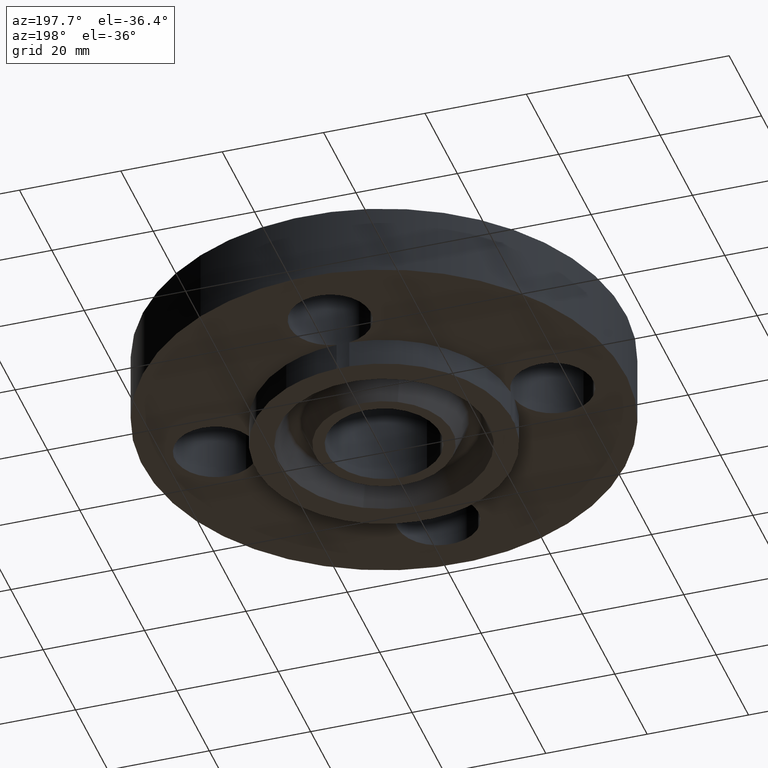
[diagram: clean part render]
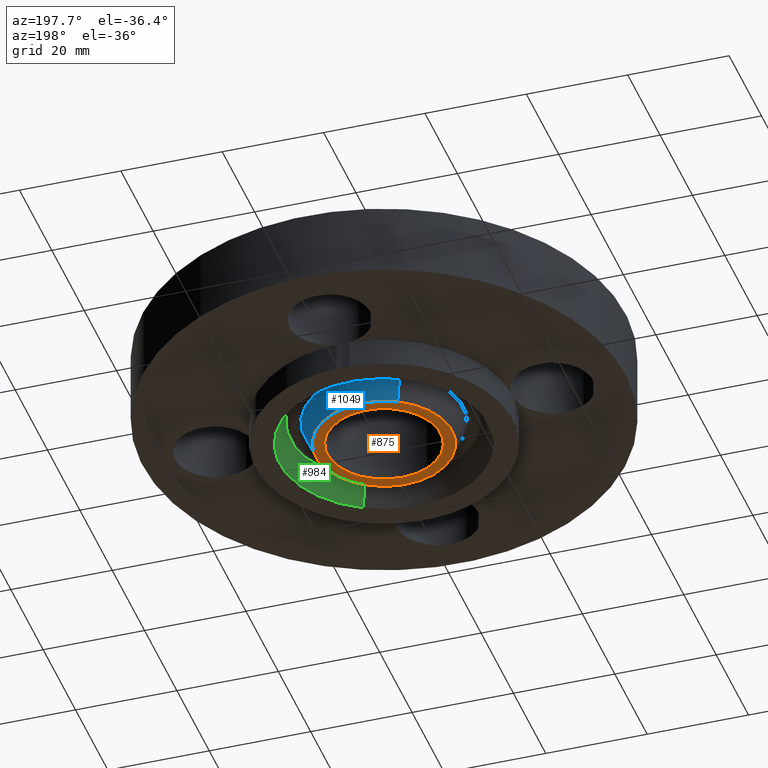
[diagram: same view with three faces highlighted in distinct colors, each labeled with its STEP entity id]
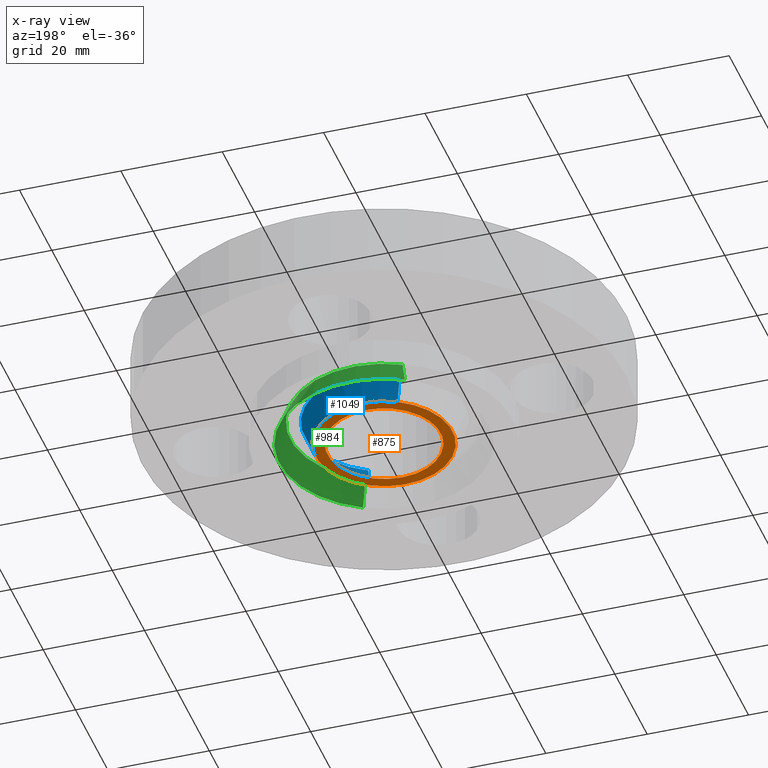
[diagram: x-ray of the same camera — body ghosted, the three highlighted faces saturated]
A machine part, auxiliary view with three faces highlighted in distinct colors.
The next image is the same camera in x-ray (body ghosted, the three faces saturated) — at least one of them is partly hidden behind the body in this view.
Their STEP definitions:

[orange] entity #875 — the highlighted planar face has unit normal (0, 0, -1).
#397=AXIS2_PLACEMENT_3D('Circle Axis2P3D',#395,#396,$) ;
#416=AXIS2_PLACEMENT_3D('Circle Axis2P3D',#414,#415,$) ;
#820=AXIS2_PLACEMENT_3D('Plane Axis2P3D',#817,#818,#819) ;
#855=AXIS2_PLACEMENT_3D('Circle Axis2P3D',#853,#854,$) ;
#864=AXIS2_PLACEMENT_3D('Circle Axis2P3D',#862,#863,$) ;
#392=CARTESIAN_POINT('Vertex',(-0.210947236987,-0.386136327233,-0.218750000001)) ;
#395=CARTESIAN_POINT('Axis2P3D Location',(0.,0.,-0.218750000001)) ;
#399=CARTESIAN_POINT('Vertex',(0.210947236987,0.386136327233,-0.218750000001)) ;
#414=CARTESIAN_POINT('Axis2P3D Location',(0.,0.,-0.218750000001)) ;
#817=CARTESIAN_POINT('Axis2P3D Location',(0.,0.440000000002,-0.218750000001)) ;
#853=CARTESIAN_POINT('Axis2P3D Location',(3.49676543189E-016,-1.39870617276E-016,-0.218750000001)) ;
#857=CARTESIAN_POINT('Vertex',(-0.254694817385,0.466215736006,-0.218750000001)) ;
#859=CARTESIAN_POINT('Vertex',(0.254694817385,-0.466215736006,-0.218750000001)) ;
#862=CARTESIAN_POINT('Axis2P3D Location',(2.09805925913E-016,-6.99353086378E-017,-0.218750000001)) ;
#396=DIRECTION('Axis2P3D Direction',(0.,0.,-0.0393700787402)) ;
#415=DIRECTION('Axis2P3D Direction',(0.,0.,-0.0393700787402)) ;
#818=DIRECTION('Axis2P3D Direction',(0.,0.,-0.0393700787402)) ;
#819=DIRECTION('Axis2P3D XDirection',(0.0393700787402,0.,0.)) ;
#854=DIRECTION('Axis2P3D Direction',(0.,0.,-0.0393700787402)) ;
#863=DIRECTION('Axis2P3D Direction',(0.,0.,-0.0393700787402)) ;
#868=ORIENTED_EDGE('',*,*,#861,.T.) ;
#869=ORIENTED_EDGE('',*,*,#866,.T.) ;
#872=ORIENTED_EDGE('',*,*,#418,.F.) ;
#873=ORIENTED_EDGE('',*,*,#401,.F.) ;
#874=FACE_BOUND('',#871,.T.) ;
#875=ADVANCED_FACE('PartBody',(#870,#874),#821,.T.) ;
#398=CIRCLE('generated circle',#397,0.440000000002) ;
#417=CIRCLE('generated circle',#416,0.440000000002) ;
#856=CIRCLE('generated circle',#855,0.531250000002) ;
#865=CIRCLE('generated circle',#864,0.531250000002) ;
#401=EDGE_CURVE('',#393,#400,#398,.T.) ;
#418=EDGE_CURVE('',#400,#393,#417,.T.) ;
#861=EDGE_CURVE('',#858,#860,#856,.T.) ;
#866=EDGE_CURVE('',#860,#858,#865,.T.) ;
#867=EDGE_LOOP('',(#868,#869)) ;
#871=EDGE_LOOP('',(#872,#873)) ;
#870=FACE_OUTER_BOUND('',#867,.T.) ;
#821=PLANE('',#820) ;
#393=VERTEX_POINT('',#392) ;
#400=VERTEX_POINT('',#399) ;
#858=VERTEX_POINT('',#857) ;
#860=VERTEX_POINT('',#859) ;

[blue] entity #1049 — the highlighted conical surface has half-angle 23 deg.
#855=AXIS2_PLACEMENT_3D('Circle Axis2P3D',#853,#854,$) ;
#999=AXIS2_PLACEMENT_3D('Circle Axis2P3D',#997,#998,$) ;
#1031=AXIS2_PLACEMENT_3D('Cone Axis2P3D',#1028,#1029,#1030) ;
#853=CARTESIAN_POINT('Axis2P3D Location',(3.49676543189E-016,-1.39870617276E-016,-0.218750000001)) ;
#857=CARTESIAN_POINT('Vertex',(-0.254694817385,0.466215736006,-0.218750000001)) ;
#859=CARTESIAN_POINT('Vertex',(0.254694817385,-0.466215736006,-0.218750000001)) ;
#994=CARTESIAN_POINT('Vertex',(0.295336685454,-0.540610176494,-0.0190396522348)) ;
#997=CARTESIAN_POINT('Axis2P3D Location',(0.,0.,-0.0190396522348)) ;
#1001=CARTESIAN_POINT('Vertex',(-0.295336685454,0.540610176494,-0.0190396522348)) ;
#1028=CARTESIAN_POINT('Axis2P3D Location',(0.,0.,-0.278750000001)) ;
#1033=CARTESIAN_POINT('Line Origine',(-0.275015751419,0.50341295625,-0.118894826118)) ;
#1038=CARTESIAN_POINT('Line Origine',(0.275015751419,-0.50341295625,-0.118894826118)) ;
#854=DIRECTION('Axis2P3D Direction',(0.,0.,-0.0393700787402)) ;
#998=DIRECTION('Axis2P3D Direction',(0.,0.,0.0393700787402)) ;
#1029=DIRECTION('Axis2P3D Direction',(0.,0.,0.0393700787402)) ;
#1030=DIRECTION('Axis2P3D XDirection',(-0.0188750212049,0.0345504945626,0.)) ;
#1034=DIRECTION('Vector Direction',(-0.00737505833565,0.0134999537303,0.0362403485611)) ;
#1039=DIRECTION('Vector Direction',(0.00737505833565,-0.0134999537303,0.0362403485611)) ;
#1035=VECTOR('Line Direction',#1034,0.0393700787402) ;
#1040=VECTOR('Line Direction',#1039,0.0393700787402) ;
#1044=ORIENTED_EDGE('',*,*,#1037,.F.) ;
#1045=ORIENTED_EDGE('',*,*,#1003,.F.) ;
#1046=ORIENTED_EDGE('',*,*,#1042,.T.) ;
#1047=ORIENTED_EDGE('',*,*,#861,.F.) ;
#1049=ADVANCED_FACE('PartBody',(#1048),#1032,.T.) ;
#856=CIRCLE('generated circle',#855,0.531250000002) ;
#1000=CIRCLE('generated circle',#999,0.616022013165) ;
#1032=CONICAL_SURFACE('Cone',#1031,0.505781511029,0.401425727959) ;
#861=EDGE_CURVE('',#858,#860,#856,.T.) ;
#1003=EDGE_CURVE('',#995,#1002,#1000,.T.) ;
#1037=EDGE_CURVE('',#1002,#858,#1036,.F.) ;
#1042=EDGE_CURVE('',#995,#860,#1041,.F.) ;
#1043=EDGE_LOOP('',(#1044,#1045,#1046,#1047)) ;
#1048=FACE_OUTER_BOUND('',#1043,.T.) ;
#1036=LINE('Line',#1033,#1035) ;
#1041=LINE('Line',#1038,#1040) ;
#858=VERTEX_POINT('',#857) ;
#860=VERTEX_POINT('',#859) ;
#995=VERTEX_POINT('',#994) ;
#1002=VERTEX_POINT('',#1001) ;

[green] entity #984 — the highlighted conical surface has half-angle 23 deg.
#845=AXIS2_PLACEMENT_3D('Circle Axis2P3D',#843,#844,$) ;
#919=AXIS2_PLACEMENT_3D('Cone Axis2P3D',#916,#917,#918) ;
#940=AXIS2_PLACEMENT_3D('Circle Axis2P3D',#938,#939,$) ;
#838=CARTESIAN_POINT('Vertex',(0.389533250117,-0.713035831539,-0.218750000001)) ;
#840=CARTESIAN_POINT('Vertex',(-0.389533250117,0.713035831539,-0.218750000001)) ;
#843=CARTESIAN_POINT('Axis2P3D Location',(3.49676543189E-017,1.39870617276E-016,-0.218750000001)) ;
#885=CARTESIAN_POINT('Vertex',(-0.348891382048,0.63864139105,-0.0190396522348)) ;
#887=CARTESIAN_POINT('Vertex',(0.348891382048,-0.63864139105,-0.0190396522348)) ;
#916=CARTESIAN_POINT('Axis2P3D Location',(0.,0.,-0.0190396522348)) ;
#921=CARTESIAN_POINT('Line Origine',(-0.369212316083,0.675838611295,-0.118894826118)) ;
#926=CARTESIAN_POINT('Line Origine',(0.369212316083,-0.675838611295,-0.118894826118)) ;
#938=CARTESIAN_POINT('Axis2P3D Location',(0.,0.,-0.0190396522348)) ;
#844=DIRECTION('Axis2P3D Direction',(0.,0.,-0.0393700787402)) ;
#917=DIRECTION('Axis2P3D Direction',(-0.,-0.,-0.0393700787402)) ;
#918=DIRECTION('Axis2P3D XDirection',(-0.0188750212049,0.0345504945626,0.)) ;
#922=DIRECTION('Vector Direction',(-0.00737505833565,0.0134999537303,-0.0362403485611)) ;
#927=DIRECTION('Vector Direction',(0.00737505833565,-0.0134999537303,-0.0362403485611)) ;
#939=DIRECTION('Axis2P3D Direction',(0.,0.,0.0393700787402)) ;
#923=VECTOR('Line Direction',#922,0.0393700787402) ;
#928=VECTOR('Line Direction',#927,0.0393700787402) ;
#979=ORIENTED_EDGE('',*,*,#847,.T.) ;
#980=ORIENTED_EDGE('',*,*,#930,.T.) ;
#981=ORIENTED_EDGE('',*,*,#942,.T.) ;
#982=ORIENTED_EDGE('',*,*,#925,.F.) ;
#984=ADVANCED_FACE('PartBody',(#983),#920,.F.) ;
#846=CIRCLE('generated circle',#845,0.812500000003) ;
#941=CIRCLE('generated circle',#940,0.72772798684) ;
#920=CONICAL_SURFACE('Cone',#919,0.72772798684,0.401425727959) ;
#847=EDGE_CURVE('',#841,#839,#846,.T.) ;
#925=EDGE_CURVE('',#841,#886,#924,.F.) ;
#930=EDGE_CURVE('',#839,#888,#929,.F.) ;
#942=EDGE_CURVE('',#888,#886,#941,.T.) ;
#978=EDGE_LOOP('',(#979,#980,#981,#982)) ;
#983=FACE_OUTER_BOUND('',#978,.T.) ;
#924=LINE('Line',#921,#923) ;
#929=LINE('Line',#926,#928) ;
#839=VERTEX_POINT('',#838) ;
#841=VERTEX_POINT('',#840) ;
#886=VERTEX_POINT('',#885) ;
#888=VERTEX_POINT('',#887) ;